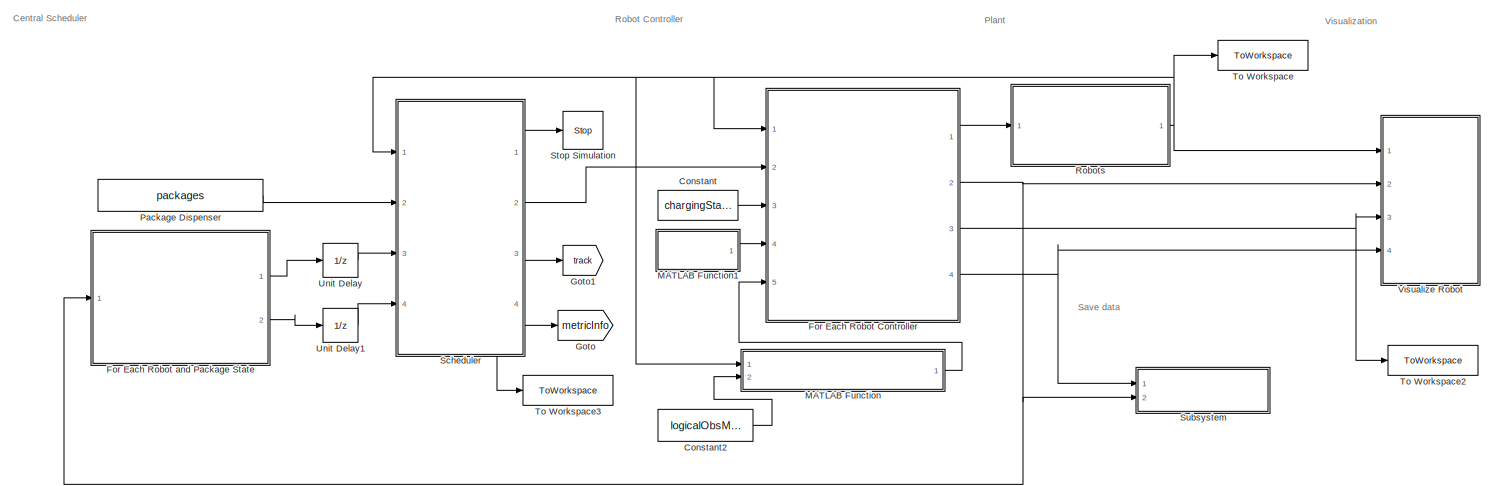
[diagram: root canvas - part 1/2, full width, top band]
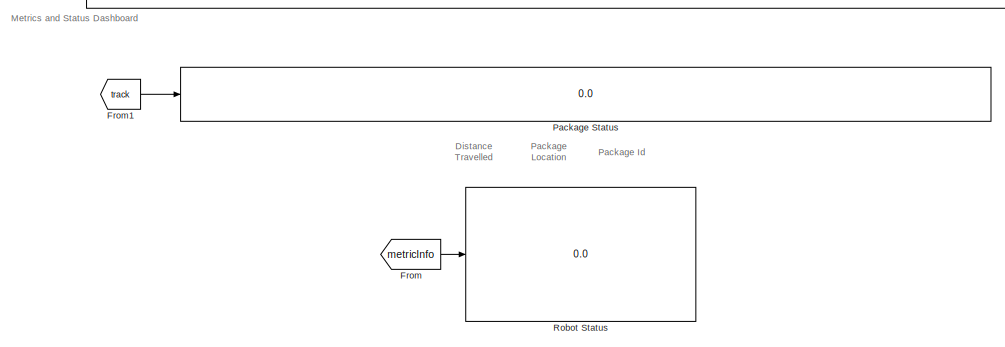
[diagram: root canvas - part 2/2, bottom center region]
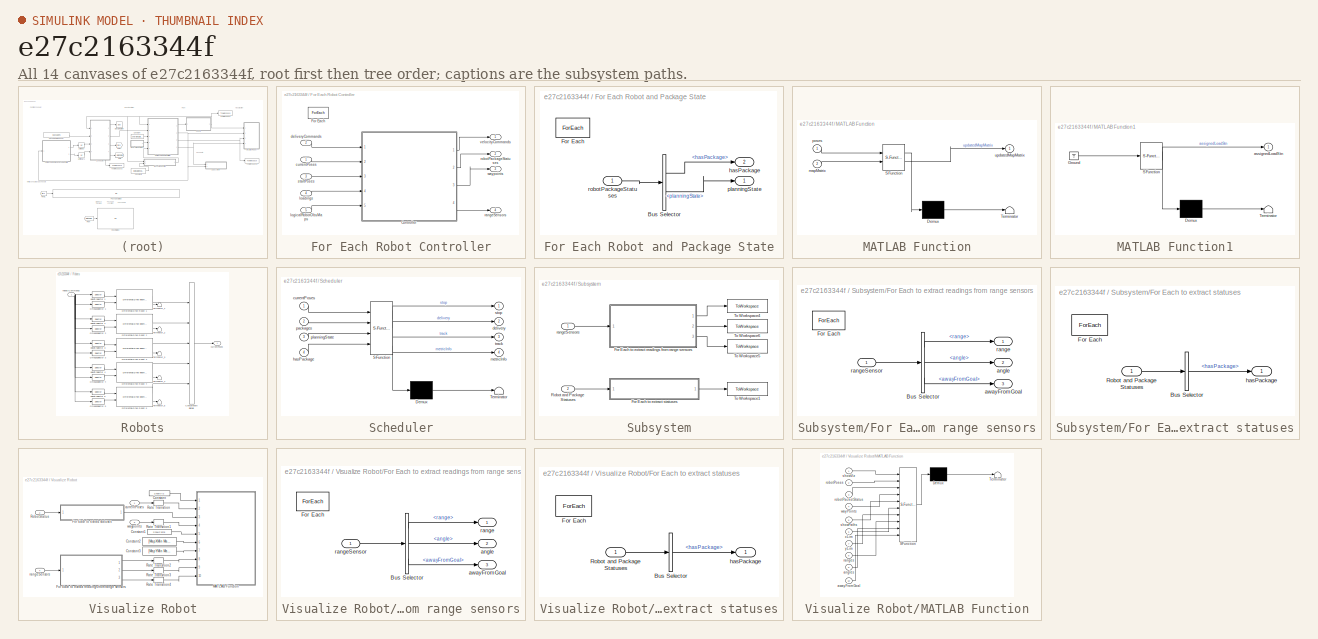
[diagram: thumbnail index - all 14 canvases of the model, root first then tree order]
MODEL slx_e27c2163344f
KIND model
CONFIG AbsTol = auto
CONFIG EnableMultiTasking = off
CONFIG FixedStep = auto
CONFIG MaxStep = auto
CONFIG MinStep = auto
CONFIG RelTol = 1e-3
CONFIG SampleTimeConstraint = Unconstrained
CONFIG SolverName = VariableStepAuto
CONFIG StartTime = 0.0
CONFIG StopTime = inf
BLOCK [Constant] Constant
  Value = chargingStations
BLOCK [Constant] Constant2
  Value = logicalObsMap
BLOCK [SubSystem] For Each Robot Controller
  Ports = [5, 4]
  RequestExecContextInheritance = off
  TreatAsAtomicUnit = on
BLOCK [ModelReference] For Each Robot Controller/Controller
  ModelNameDialog = robotController.slx
  ModelReferenceVersion = 1.160
  Ports = [5, 4]
BLOCK [ForEach] For Each Robot Controller/For Each
  DisableCoverage = on
  Ports = []
BLOCK [Inport] For Each Robot Controller/currentPoses
  Partition = on
  PartitionDimension = 2
  PartitionOffset = 0
  PartitionWidth = 1
BLOCK [Inport] For Each Robot Controller/deliveryCommands
  Partition = on
  PartitionDimension = 1
  PartitionOffset = 0
  PartitionWidth = 1
  Port = 2
BLOCK [Inport] For Each Robot Controller/loadings
  Partition = on
  PartitionDimension = 1
  PartitionOffset = 0
  PartitionWidth = 1
  Port = 4
BLOCK [Inport] For Each Robot Controller/logicalRobotObsMaps
  OutDataTypeStr = boolean
  Port = 5
BLOCK [Outport] For Each Robot Controller/rangeSensors
  ConcatenationDimension = 1
  Port = 4
BLOCK [Outport] For Each Robot Controller/robotPackageStatuses
  ConcatenationDimension = 1
  Port = 2
BLOCK [Inport] For Each Robot Controller/startPoses
  Partition = on
  PartitionDimension = 1
  PartitionOffset = 0
  PartitionWidth = 1
  Port = 3
BLOCK [Outport] For Each Robot Controller/velocityCommands
  ConcatenationDimension = 2
BLOCK [Outport] For Each Robot Controller/waypoints
  ConcatenationDimension = 3
  Port = 3
BLOCK [SubSystem] For Each Robot and Package State
  Ports = [1, 2]
  RequestExecContextInheritance = off
  TreatAsAtomicUnit = on
BLOCK [BusSelector] For Each Robot and Package State/Bus Selector
  OutputSignals = hasPackage,planningState
  Ports = [1, 2]
BLOCK [ForEach] For Each Robot and Package State/For Each
  DisableCoverage = on
  Ports = []
BLOCK [Outport] For Each Robot and Package State/hasPackage
  ConcatenationDimension = 1
  Port = 2
BLOCK [Outport] For Each Robot and Package State/planningState
  ConcatenationDimension = 1
BLOCK [Inport] For Each Robot and Package State/robotPackageStatuses
  Partition = on
  PartitionDimension = 1
  PartitionOffset = 0
  PartitionWidth = 1
BLOCK [From] From
  GotoTag = metricInfo
BLOCK [From] From1
  GotoTag = track
BLOCK [Goto] Goto
  GotoTag = metricInfo
BLOCK [Goto] Goto1
  GotoTag = track
BLOCK [SubSystem] MATLAB Function
  ErrorFcn = Stateflow.Translate.translate
  PermitHierarchicalResolution = ExplicitOnly
  Ports = [2, 1]
  RequestExecContextInheritance = off
  SFBlockType = MATLAB Function
  TreatAsAtomicUnit = on
BLOCK [Demux] MATLAB Function/ Demux 
  Outputs = 1
  Ports = [1, 1]
BLOCK [S-Function] MATLAB Function/ SFunction 
  EnableBusSupport = on
  FunctionName = sf_sfun
  PortCounts = [2 2]
  Ports = [2, 2]
  SFcnIsStateOwnerBlock = off
  SFunctionDeploymentMode = off
  Tag = Stateflow S-Function 1
BLOCK [Terminator] MATLAB Function/ Terminator 
BLOCK [Inport] MATLAB Function/mapMatrix
  Port = 2
BLOCK [Inport] MATLAB Function/poses
BLOCK [Outport] MATLAB Function/updatedMapMatrix
BLOCK [SubSystem] MATLAB Function1
  ErrorFcn = Stateflow.Translate.translate
  PermitHierarchicalResolution = ExplicitOnly
  Ports = [0, 1]
  RequestExecContextInheritance = off
  SFBlockType = MATLAB Function
  TreatAsAtomicUnit = on
BLOCK [Demux] MATLAB Function1/ Demux 
  Outputs = 1
  Ports = [1, 1]
BLOCK [Ground] MATLAB Function1/ Ground 
BLOCK [S-Function] MATLAB Function1/ SFunction 
  EnableBusSupport = on
  FunctionName = sf_sfun
  Parameters = loadingStations,packages
  PortCounts = [1 2]
  Ports = [1, 2]
  SFcnIsStateOwnerBlock = off
  SFunctionDeploymentMode = off
  Tag = Stateflow S-Function 4
BLOCK [Terminator] MATLAB Function1/ Terminator 
BLOCK [Outport] MATLAB Function1/assignedLoadStn
BLOCK [Constant] Package Dispenser
  Value = packages
BLOCK [Display] Package Status 
  Decimation = 1
  Ports = [1]
BLOCK [Display] Robot Status
  Decimation = 1
  Ports = [1]
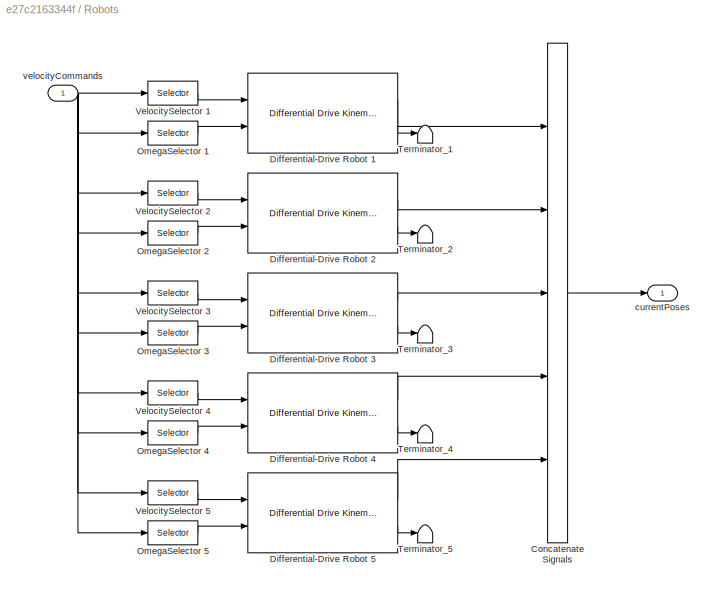
BLOCK [SubSystem] Robots
  Ports = [1, 1]
  RequestExecContextInheritance = off
BLOCK [Concatenate] Robots/Concatenate Signals
  ConcatenateDimension = 2
  Mode = Multidimensional array
  NumInputs = 5
  Ports = [5, 1]
BLOCK [Reference] Robots/Differential-Drive Robot 1  REF=robotmobilelib/Differential Drive Kinematic Model
  Ports = [2, 2]
  SourceBlock = robotmobilelib/Differential Drive Kinematic Model
  SourceProductName = Robotics System Toolbox
  SourceType = Differential Drive Kinematic Model
BLOCK [Reference] Robots/Differential-Drive Robot 2  REF=robotmobilelib/Differential Drive Kinematic Model
  Ports = [2, 2]
  SourceBlock = robotmobilelib/Differential Drive Kinematic Model
  SourceProductName = Robotics System Toolbox
  SourceType = Differential Drive Kinematic Model
BLOCK [Reference] Robots/Differential-Drive Robot 3  REF=robotmobilelib/Differential Drive Kinematic Model
  Ports = [2, 2]
  SourceBlock = robotmobilelib/Differential Drive Kinematic Model
  SourceProductName = Robotics System Toolbox
  SourceType = Differential Drive Kinematic Model
BLOCK [Reference] Robots/Differential-Drive Robot 4  REF=robotmobilelib/Differential Drive Kinematic Model
  Ports = [2, 2]
  SourceBlock = robotmobilelib/Differential Drive Kinematic Model
  SourceProductName = Robotics System Toolbox
  SourceType = Differential Drive Kinematic Model
BLOCK [Reference] Robots/Differential-Drive Robot 5  REF=robotmobilelib/Differential Drive Kinematic Model
  Ports = [2, 2]
  SourceBlock = robotmobilelib/Differential Drive Kinematic Model
  SourceProductName = Robotics System Toolbox
  SourceType = Differential Drive Kinematic Model
BLOCK [Selector] Robots/OmegaSelector 1
  IndexOptions = Index vector (dialog),Index vector (dialog)
  Indices = 2,1
  InputPortWidth = 3
  NumberOfDimensions = 2
  OutputSizes = 1
  Ports = [1, 1]
BLOCK [Selector] Robots/OmegaSelector 2
  IndexOptions = Index vector (dialog),Index vector (dialog)
  Indices = 2,2
  InputPortWidth = 3
  NumberOfDimensions = 2
  OutputSizes = 1
  Ports = [1, 1]
BLOCK [Selector] Robots/OmegaSelector 3
  IndexOptions = Index vector (dialog),Index vector (dialog)
  Indices = 2,3
  InputPortWidth = 3
  NumberOfDimensions = 2
  OutputSizes = 1
  Ports = [1, 1]
BLOCK [Selector] Robots/OmegaSelector 4
  IndexOptions = Index vector (dialog),Index vector (dialog)
  Indices = 2,4
  InputPortWidth = 3
  NumberOfDimensions = 2
  OutputSizes = 1
  Ports = [1, 1]
BLOCK [Selector] Robots/OmegaSelector 5
  IndexOptions = Index vector (dialog),Index vector (dialog)
  Indices = 2,5
  InputPortWidth = 3
  NumberOfDimensions = 2
  OutputSizes = 1
  Ports = [1, 1]
BLOCK [Terminator] Robots/Terminator_1
BLOCK [Terminator] Robots/Terminator_2
BLOCK [Terminator] Robots/Terminator_3
BLOCK [Terminator] Robots/Terminator_4
BLOCK [Terminator] Robots/Terminator_5
BLOCK [Selector] Robots/VelocitySelector 1
  IndexOptions = Index vector (dialog),Index vector (dialog)
  Indices = 1,1
  InputPortWidth = 3
  NumberOfDimensions = 2
  OutputSizes = 1
  Ports = [1, 1]
BLOCK [Selector] Robots/VelocitySelector 2
  IndexOptions = Index vector (dialog),Index vector (dialog)
  Indices = 1,2
  InputPortWidth = 3
  NumberOfDimensions = 2
  OutputSizes = 1
  Ports = [1, 1]
BLOCK [Selector] Robots/VelocitySelector 3
  IndexOptions = Index vector (dialog),Index vector (dialog)
  Indices = 1,3
  InputPortWidth = 3
  NumberOfDimensions = 2
  OutputSizes = 1
  Ports = [1, 1]
BLOCK [Selector] Robots/VelocitySelector 4
  IndexOptions = Index vector (dialog),Index vector (dialog)
  Indices = 1,4
  InputPortWidth = 3
  NumberOfDimensions = 2
  OutputSizes = 1
  Ports = [1, 1]
BLOCK [Selector] Robots/VelocitySelector 5
  IndexOptions = Index vector (dialog),Index vector (dialog)
  Indices = 1,5
  InputPortWidth = 3
  NumberOfDimensions = 2
  OutputSizes = 1
  Ports = [1, 1]
BLOCK [Outport] Robots/currentPoses
BLOCK [Inport] Robots/velocityCommands
BLOCK [SubSystem] Scheduler
  ErrorFcn = Stateflow.Translate.translate
  PermitHierarchicalResolution = ExplicitOnly
  Ports = [4, 4]
  Priority = 1
  RequestExecContextInheritance = off
  SFBlockType = Chart
  TreatAsAtomicUnit = on
BLOCK [Demux] Scheduler/ Demux 
  Outputs = 1
  Ports = [1, 1]
BLOCK [S-Function] Scheduler/ SFunction 
  EnableBusSupport = on
  FunctionName = sf_sfun
  PortCounts = [4 5]
  Ports = [4, 5]
  SFcnIsStateOwnerBlock = off
  SFunctionDeploymentMode = off
  Tag = Stateflow S-Function 3
BLOCK [Terminator] Scheduler/ Terminator 
BLOCK [Inport] Scheduler/currentPoses
BLOCK [Outport] Scheduler/delivery
  Port = 2
BLOCK [Inport] Scheduler/hasPackage
  Port = 4
BLOCK [Outport] Scheduler/metricInfo
  Port = 4
BLOCK [Inport] Scheduler/packages
  Port = 2
BLOCK [Inport] Scheduler/planningState
  Port = 3
BLOCK [Outport] Scheduler/stop
  VectorParamsAs1DForOutWhenUnconnected = off
BLOCK [Outport] Scheduler/track
  Port = 3
BLOCK [Stop] Stop Simulation
BLOCK [SubSystem] Subsystem
  Ports = [2]
  RequestExecContextInheritance = off
BLOCK [SubSystem] Subsystem/For Each to extract readings from range sensors
  Ports = [1, 3]
  RequestExecContextInheritance = off
  TreatAsAtomicUnit = on
BLOCK [BusSelector] Subsystem/For Each to extract readings from range sensors/Bus Selector
  OutputSignals = range,angle,awayFromGoal
  Ports = [1, 3]
BLOCK [ForEach] Subsystem/For Each to extract readings from range sensors/For Each
  DisableCoverage = on
  Ports = []
BLOCK [Outport] Subsystem/For Each to extract readings from range sensors/angle
  ConcatenationDimension = 2
  Port = 2
BLOCK [Outport] Subsystem/For Each to extract readings from range sensors/awayFromGoal
  ConcatenationDimension = 1
  OutDataTypeStr = boolean
  Port = 3
BLOCK [Outport] Subsystem/For Each to extract readings from range sensors/range
  ConcatenationDimension = 2
BLOCK [Inport] Subsystem/For Each to extract readings from range sensors/rangeSensor
  Partition = on
  PartitionDimension = 1
  PartitionOffset = 0
  PartitionWidth = 1
BLOCK [SubSystem] Subsystem/For Each to extract statuses
  Ports = [1, 1]
  RequestExecContextInheritance = off
  TreatAsAtomicUnit = on
BLOCK [BusSelector] Subsystem/For Each to extract statuses/Bus Selector
  OutputSignals = hasPackage
  Ports = [1, 1]
BLOCK [ForEach] Subsystem/For Each to extract statuses/For Each
  DisableCoverage = on
  Ports = []
BLOCK [Inport] Subsystem/For Each to extract statuses/Robot and Package Statuses
  Partition = on
  PartitionDimension = 1
  PartitionOffset = 0
  PartitionWidth = 1
BLOCK [Outport] Subsystem/For Each to extract statuses/hasPackage
  ConcatenationDimension = 1
BLOCK [Inport] Subsystem/Robot and Package Statuses
  Port = 2
BLOCK [ToWorkspace] Subsystem/To Workspace1
  FixptAsFi = on
  MaxDataPoints = inf
  Ports = [1]
  SampleTime = -1
  VariableName = hasPackage
BLOCK [ToWorkspace] Subsystem/To Workspace4
  FixptAsFi = on
  MaxDataPoints = inf
  Ports = [1]
  SampleTime = -1
  VariableName = range
BLOCK [ToWorkspace] Subsystem/To Workspace5
  FixptAsFi = on
  MaxDataPoints = inf
  Ports = [1]
  SampleTime = -1
  VariableName = awayFromGoal
BLOCK [ToWorkspace] Subsystem/To Workspace6
  FixptAsFi = on
  MaxDataPoints = inf
  Ports = [1]
  SampleTime = -1
  VariableName = angles
BLOCK [Inport] Subsystem/rangeSensors
BLOCK [ToWorkspace] To Workspace
  FixptAsFi = on
  MaxDataPoints = inf
  Ports = [1]
  SampleTime = -1
  VariableName = robotPoses
BLOCK [ToWorkspace] To Workspace2
  FixptAsFi = on
  MaxDataPoints = inf
  Ports = [1]
  SampleTime = -1
  VariableName = pathes
BLOCK [ToWorkspace] To Workspace3
  FixptAsFi = on
  MaxDataPoints = inf
  Ports = [1]
  SampleTime = -1
  VariableName = metric
BLOCK [UnitDelay] Unit Delay
  HasFrameUpgradeWarning = on
  InitialCondition = repmat(RobotState.AtDock, [1, numRobots])
  SampleTime = -1
BLOCK [UnitDelay] Unit Delay1
  HasFrameUpgradeWarning = on
  InitialCondition = repmat(0, [1, numRobots])
  SampleTime = -1
BLOCK [SubSystem] Visualize Robot
  Ports = [4]
  RequestExecContextInheritance = off
BLOCK [Constant] Visualize Robot/Constant
  Value = ShowViz
BLOCK [Constant] Visualize Robot/Constant1
  Value = ShowPaths
BLOCK [Constant] Visualize Robot/Constant2
  Value = [MapXMin MapXMax]
BLOCK [Constant] Visualize Robot/Constant3
  Value = [MapYMin MapYMax]
BLOCK [SubSystem] Visualize Robot/For Each to extract readings from range sensors
  Ports = [1, 3]
  RequestExecContextInheritance = off
  TreatAsAtomicUnit = on
BLOCK [BusSelector] Visualize Robot/For Each to extract readings from range sensors/Bus Selector
  OutputSignals = range,angle,awayFromGoal
  Ports = [1, 3]
BLOCK [ForEach] Visualize Robot/For Each to extract readings from range sensors/For Each
  DisableCoverage = on
  Ports = []
BLOCK [Outport] Visualize Robot/For Each to extract readings from range sensors/angle
  ConcatenationDimension = 2
  Port = 2
BLOCK [Outport] Visualize Robot/For Each to extract readings from range sensors/awayFromGoal
  ConcatenationDimension = 1
  OutDataTypeStr = boolean
  Port = 3
BLOCK [Outport] Visualize Robot/For Each to extract readings from range sensors/range
  ConcatenationDimension = 2
BLOCK [Inport] Visualize Robot/For Each to extract readings from range sensors/rangeSensor
  Partition = on
  PartitionDimension = 1
  PartitionOffset = 0
  PartitionWidth = 1
BLOCK [SubSystem] Visualize Robot/For Each to extract statuses
  Ports = [1, 1]
  RequestExecContextInheritance = off
  TreatAsAtomicUnit = on
BLOCK [BusSelector] Visualize Robot/For Each to extract statuses/Bus Selector
  OutputSignals = hasPackage
  Ports = [1, 1]
BLOCK [ForEach] Visualize Robot/For Each to extract statuses/For Each
  DisableCoverage = on
  Ports = []
BLOCK [Inport] Visualize Robot/For Each to extract statuses/Robot and Package Statuses
  Partition = on
  PartitionDimension = 1
  PartitionOffset = 0
  PartitionWidth = 1
BLOCK [Outport] Visualize Robot/For Each to extract statuses/hasPackage
  ConcatenationDimension = 1
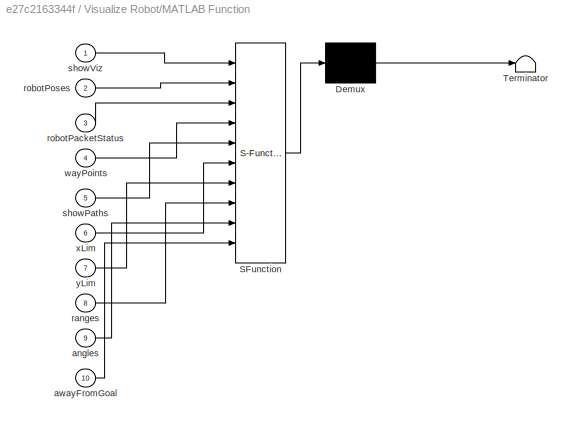
BLOCK [SubSystem] Visualize Robot/MATLAB Function
  ErrorFcn = Stateflow.Translate.translate
  PermitHierarchicalResolution = ExplicitOnly
  Ports = [10]
  RequestExecContextInheritance = off
  SFBlockType = MATLAB Function
  TreatAsAtomicUnit = on
BLOCK [Demux] Visualize Robot/MATLAB Function/ Demux 
  Outputs = 1
  Ports = [1, 1]
BLOCK [S-Function] Visualize Robot/MATLAB Function/ SFunction 
  EnableBusSupport = on
  FunctionName = sf_sfun
  Parameters = DockLocations,MeshSelectionIdx,ObstacleLocation,ShelfLocations,StartLocations,logicalObsMap
  PortCounts = [10 1]
  Ports = [10, 1]
  SFcnIsStateOwnerBlock = off
  SFunctionDeploymentMode = off
  Tag = Stateflow S-Function 2
BLOCK [Terminator] Visualize Robot/MATLAB Function/ Terminator 
BLOCK [Inport] Visualize Robot/MATLAB Function/angles
  Port = 9
BLOCK [Inport] Visualize Robot/MATLAB Function/awayFromGoal
  Port = 10
BLOCK [Inport] Visualize Robot/MATLAB Function/ranges
  Port = 8
BLOCK [Inport] Visualize Robot/MATLAB Function/robotPacketStatus
  Port = 3
BLOCK [Inport] Visualize Robot/MATLAB Function/robotPoses
  Port = 2
BLOCK [Inport] Visualize Robot/MATLAB Function/showPaths
  Port = 5
BLOCK [Inport] Visualize Robot/MATLAB Function/showViz
BLOCK [Inport] Visualize Robot/MATLAB Function/wayPoints
  Port = 4
BLOCK [Inport] Visualize Robot/MATLAB Function/xLim
  Port = 6
BLOCK [Inport] Visualize Robot/MATLAB Function/yLim
  Port = 7
BLOCK [RateTransition] Visualize Robot/Rate Transition
BLOCK [RateTransition] Visualize Robot/Rate Transition1
BLOCK [RateTransition] Visualize Robot/Rate Transition2
BLOCK [RateTransition] Visualize Robot/Rate Transition3
BLOCK [RateTransition] Visualize Robot/Rate Transition4
BLOCK [Inport] Visualize Robot/RobotStatus
  Port = 2
BLOCK [Inport] Visualize Robot/currentPoses
BLOCK [Inport] Visualize Robot/rangeSensors
  Port = 4
BLOCK [Inport] Visualize Robot/waypoints
  Port = 3
ANNOTATION (root): Distance Travelled
ANNOTATION (root): Package Location
ANNOTATION (root): Package Id
ANNOTATION (root): Central Scheduler
ANNOTATION (root): Metrics and Status Dashboard
ANNOTATION (root): Plant
ANNOTATION (root): Robot Controller
ANNOTATION (root): Save data
ANNOTATION (root): Visualization
LINE Constant2:1 -> MATLAB Function:2
LINE Constant:1 -> For Each Robot Controller:3
LINE For Each Robot Controller/Controller:1 -> For Each Robot Controller/velocityCommands:1
LINE For Each Robot Controller/Controller:2 -> For Each Robot Controller/robotPackageStatuses:1
LINE For Each Robot Controller/Controller:3 -> For Each Robot Controller/waypoints:1
LINE For Each Robot Controller/Controller:4 -> For Each Robot Controller/rangeSensors:1
LINE For Each Robot Controller/currentPoses:1 -> For Each Robot Controller/Controller:2
LINE For Each Robot Controller/deliveryCommands:1 -> For Each Robot Controller/Controller:1
LINE For Each Robot Controller/loadings:1 -> For Each Robot Controller/Controller:4
LINE For Each Robot Controller/logicalRobotObsMaps:1 -> For Each Robot Controller/Controller:5
LINE For Each Robot Controller/startPoses:1 -> For Each Robot Controller/Controller:3
LINE For Each Robot Controller:1 -> Robots:1
NET For Each Robot Controller:2 -> For Each Robot and Package State:1, Subsystem:2, Visualize Robot:2
NET For Each Robot Controller:3 -> To Workspace2:1, Visualize Robot:3
NET For Each Robot Controller:4 -> Subsystem:1, Visualize Robot:4
LINE For Each Robot and Package State/Bus Selector:1 -> For Each Robot and Package State/hasPackage:1
LINE For Each Robot and Package State/Bus Selector:2 -> For Each Robot and Package State/planningState:1
LINE For Each Robot and Package State/robotPackageStatuses:1 -> For Each Robot and Package State/Bus Selector:1
LINE For Each Robot and Package State:1 -> Unit Delay:1
LINE For Each Robot and Package State:2 -> Unit Delay1:1
LINE From1:1 -> Package Status :1
LINE From:1 -> Robot Status:1
LINE MATLAB Function1:1 -> For Each Robot Controller:4
LINE MATLAB Function:1 -> For Each Robot Controller:5
LINE Package Dispenser:1 -> Scheduler:2
LINE Robots/Concatenate Signals:1 -> Robots/currentPoses:1
LINE Robots/Differential-Drive Robot 1:1 -> Robots/Concatenate Signals:1
LINE Robots/Differential-Drive Robot 1:2 -> Robots/Terminator_1:1
LINE Robots/Differential-Drive Robot 2:1 -> Robots/Concatenate Signals:2
LINE Robots/Differential-Drive Robot 2:2 -> Robots/Terminator_2:1
LINE Robots/Differential-Drive Robot 3:1 -> Robots/Concatenate Signals:3
LINE Robots/Differential-Drive Robot 3:2 -> Robots/Terminator_3:1
LINE Robots/Differential-Drive Robot 4:1 -> Robots/Concatenate Signals:4
LINE Robots/Differential-Drive Robot 4:2 -> Robots/Terminator_4:1
LINE Robots/Differential-Drive Robot 5:1 -> Robots/Concatenate Signals:5
LINE Robots/Differential-Drive Robot 5:2 -> Robots/Terminator_5:1
LINE Robots/OmegaSelector 1:1 -> Robots/Differential-Drive Robot 1:2
LINE Robots/OmegaSelector 2:1 -> Robots/Differential-Drive Robot 2:2
LINE Robots/OmegaSelector 3:1 -> Robots/Differential-Drive Robot 3:2
LINE Robots/OmegaSelector 4:1 -> Robots/Differential-Drive Robot 4:2
LINE Robots/OmegaSelector 5:1 -> Robots/Differential-Drive Robot 5:2
LINE Robots/VelocitySelector 1:1 -> Robots/Differential-Drive Robot 1:1
LINE Robots/VelocitySelector 2:1 -> Robots/Differential-Drive Robot 2:1
LINE Robots/VelocitySelector 3:1 -> Robots/Differential-Drive Robot 3:1
LINE Robots/VelocitySelector 4:1 -> Robots/Differential-Drive Robot 4:1
LINE Robots/VelocitySelector 5:1 -> Robots/Differential-Drive Robot 5:1
NET Robots/velocityCommands:1 -> Robots/OmegaSelector 1:1, Robots/OmegaSelector 2:1, Robots/OmegaSelector 3:1, Robots/OmegaSelector 4:1, Robots/OmegaSelector 5:1, Robots/VelocitySelector 1:1, Robots/VelocitySelector 2:1, Robots/VelocitySelector 3:1, Robots/VelocitySelector 4:1, Robots/VelocitySelector 5:1
NET Robots:1 -> For Each Robot Controller:1, MATLAB Function:1, Scheduler:1, To Workspace:1, Visualize Robot:1
LINE Scheduler:1 -> Stop Simulation:1
LINE Scheduler:2 -> For Each Robot Controller:2
LINE Scheduler:3 -> Goto1:1
NET Scheduler:4 -> Goto:1, To Workspace3:1
LINE Subsystem/For Each to extract readings from range sensors/Bus Selector:1 -> Subsystem/For Each to extract readings from range sensors/range:1
LINE Subsystem/For Each to extract readings from range sensors/Bus Selector:2 -> Subsystem/For Each to extract readings from range sensors/angle:1
LINE Subsystem/For Each to extract readings from range sensors/Bus Selector:3 -> Subsystem/For Each to extract readings from range sensors/awayFromGoal:1
LINE Subsystem/For Each to extract readings from range sensors/rangeSensor:1 -> Subsystem/For Each to extract readings from range sensors/Bus Selector:1
LINE Subsystem/For Each to extract readings from range sensors:1 -> Subsystem/To Workspace4:1
LINE Subsystem/For Each to extract readings from range sensors:2 -> Subsystem/To Workspace6:1
LINE Subsystem/For Each to extract readings from range sensors:3 -> Subsystem/To Workspace5:1
LINE Subsystem/For Each to extract statuses/Bus Selector:1 -> Subsystem/For Each to extract statuses/hasPackage:1
LINE Subsystem/For Each to extract statuses/Robot and Package Statuses:1 -> Subsystem/For Each to extract statuses/Bus Selector:1
LINE Subsystem/For Each to extract statuses:1 -> Subsystem/To Workspace1:1
LINE Subsystem/Robot and Package Statuses:1 -> Subsystem/For Each to extract statuses:1
LINE Subsystem/rangeSensors:1 -> Subsystem/For Each to extract readings from range sensors:1
LINE Unit Delay1:1 -> Scheduler:4
LINE Unit Delay:1 -> Scheduler:3
LINE Visualize Robot/Constant1:1 -> Visualize Robot/MATLAB Function:5
LINE Visualize Robot/Constant2:1 -> Visualize Robot/MATLAB Function:6
LINE Visualize Robot/Constant3:1 -> Visualize Robot/MATLAB Function:7
LINE Visualize Robot/Constant:1 -> Visualize Robot/MATLAB Function:1
LINE Visualize Robot/For Each to extract readings from range sensors/Bus Selector:1 -> Visualize Robot/For Each to extract readings from range sensors/range:1
LINE Visualize Robot/For Each to extract readings from range sensors/Bus Selector:2 -> Visualize Robot/For Each to extract readings from range sensors/angle:1
LINE Visualize Robot/For Each to extract readings from range sensors/Bus Selector:3 -> Visualize Robot/For Each to extract readings from range sensors/awayFromGoal:1
LINE Visualize Robot/For Each to extract readings from range sensors/rangeSensor:1 -> Visualize Robot/For Each to extract readings from range sensors/Bus Selector:1
LINE Visualize Robot/For Each to extract readings from range sensors:1 -> Visualize Robot/Rate Transition2:1
LINE Visualize Robot/For Each to extract readings from range sensors:2 -> Visualize Robot/Rate Transition3:1
LINE Visualize Robot/For Each to extract readings from range sensors:3 -> Visualize Robot/Rate Transition4:1
LINE Visualize Robot/For Each to extract statuses/Bus Selector:1 -> Visualize Robot/For Each to extract statuses/hasPackage:1
LINE Visualize Robot/For Each to extract statuses/Robot and Package Statuses:1 -> Visualize Robot/For Each to extract statuses/Bus Selector:1
LINE Visualize Robot/For Each to extract statuses:1 -> Visualize Robot/MATLAB Function:3
LINE Visualize Robot/Rate Transition1:1 -> Visualize Robot/MATLAB Function:4
LINE Visualize Robot/Rate Transition2:1 -> Visualize Robot/MATLAB Function:8
LINE Visualize Robot/Rate Transition3:1 -> Visualize Robot/MATLAB Function:9
LINE Visualize Robot/Rate Transition4:1 -> Visualize Robot/MATLAB Function:10
LINE Visualize Robot/Rate Transition:1 -> Visualize Robot/MATLAB Function:2
LINE Visualize Robot/RobotStatus:1 -> Visualize Robot/For Each to extract statuses:1
LINE Visualize Robot/currentPoses:1 -> Visualize Robot/Rate Transition:1
LINE Visualize Robot/rangeSensors:1 -> Visualize Robot/For Each to extract readings from range sensors:1
LINE Visualize Robot/waypoints:1 -> Visualize Robot/Rate Transition1:1
note: NET lines group one-source signal fan-out (src -> all destinations, sorted); 1:1 wires keep LINE
CHART MATLAB Function states=1 transitions=1
  STATE_LABEL 'eML_blk_kernel()'
  STATE_LABEL "SCRIPT:\nfunction updatedMapMatrix = updateMap(poses,mapMatrix)\n\nposesMap = zeros(size(mapMatrix));\n% num_robot = size(poses,1);\nposes_grid = world2grid(binaryOccupancyMap(mapMatrix), poses(1:2,:)');\nidx = sub2ind(size(mapMatrix),poses_grid(:,1),poses_grid(:,2));\nposesMap(idx) = true;\nupdatedMapMatrix = logical(posesMap + mapMatrix);\n\n\nend\n    \n\n\n"
CHART Visualize Robot/MATLAB Function states=1 transitions=1
  STATE_LABEL 'eML_blk_kernel()'
  STATE_LABEL "SCRIPT:\nfunction simulationVisualization(showViz, robotPoses, robotPacketStatus, wayPoints, ShelfLocations, DockLocations, showPaths, xLim, yLim, MeshSelectionIdx, ranges, angles, awayFromGoal, StartLocations, ObstacleLocation, logicalObsMap)\n%#codegen\n\n%% Setup\n\ncoder.extrinsic('VisualizeWarehouseRobots');\npersistent f\n\nif isempty(f) && showViz\n    f = figure('units','normalized','outerposition',...<+720ch>"
CHART Scheduler states=5 transitions=19
  STATE_LABEL 'Assign\nentry:\nstop = 0;'
  STATE_LABEL '[currentPackage <= length(packages)]{robot = 1;}'
  STATE_LABEL '[robot <= numRobots]'
  STATE_LABEL '[planningState(robot) == RobotState.AtLoadingStn && ...\n~hasPackage(robot)&&...\ncurrentPackage <= length(packages)]\n{\ndelivery(robot).package= packages(robot);\ndelivery(robot).packageId = currentPackage;\ncurrentPackage = currentPackage + 1;\ndelivery(robot).givenPackage = 1;\n}'
  STATE_LABEL '{packageTrack;\nrobotTrack;}'
  STATE_LABEL '{delivery(robot).givenPackage = 0;}'
  STATE_LABEL '{robot = robot + 1;}'
  STATE_LABEL 'packageTrack'
  STATE_LABEL 'SCRIPT:\nfunction packageTrack\nnumPackets = length(packages);\nfor r = 1 : numRobots\n    packageId = delivery(r).packageId;\n    if(packageId > 0 && track(packageId) ~= PackageState.Delivered)\n        track(packageId) = PackageState.InProgress;\n    end\n    if(packageId > 0)\n        if(~hasPackage(r) && planningState(r) == RobotState.AtUnloadingStn)\n            track(packageId) = PackageState.Delivere...<+26ch>'
  STATE_LABEL 'robotTrack'
  STATE_LABEL "SCRIPT:\nfunction robotTrack\n% calculate distance\ndisplacement = (prevPose - currentPoses(1:2, :));\nd = sqrt(diag(displacement' * displacement));\ndistance = distance + d;\nprevPose = currentPoses(1:2, :);\nd = distance;\nmetricInfo(:, 1) = distance(:);\n\nrobotPackages = zeros(1, numRobots);\nrobotPackageId = zeros(1, numRobots);\npacketIds = zeros(1, numRobots);\nfor r = 1:numRobots\n    robotPackages(r) =...<+151ch>"
  STATE_LABEL 'LastPackage\n'
  STATE_LABEL '{robot = 1;}'
  STATE_LABEL '[robot <= numRobots]'
  STATE_LABEL '{packageTrack;\nrobotTrack;}'
  STATE_LABEL '{delivery(robot).givenPackage = 0;\n}'
  STATE_LABEL '{robot = robot + 1;}'
  STATE_LABEL 'Stop\nstop = 1;'
CHART MATLAB Function1 states=1 transitions=1
  STATE_LABEL 'eML_blk_kernel()'
  STATE_LABEL 'SCRIPT:\nfunction assignedLoadStn = assignLoadStn(loadingStations, packages)\nassignedLoadStn = zeros(size(loadingStations));\nfor i=1:size(packages,2)\n    assignedLoadStn(i,:) = loadingStations(packages(i),:);\nend\n\nend'
CHART  states=0 transitions=0
CHART  states=0 transitions=0
CHART  states=0 transitions=0
CHART  states=0 transitions=0
